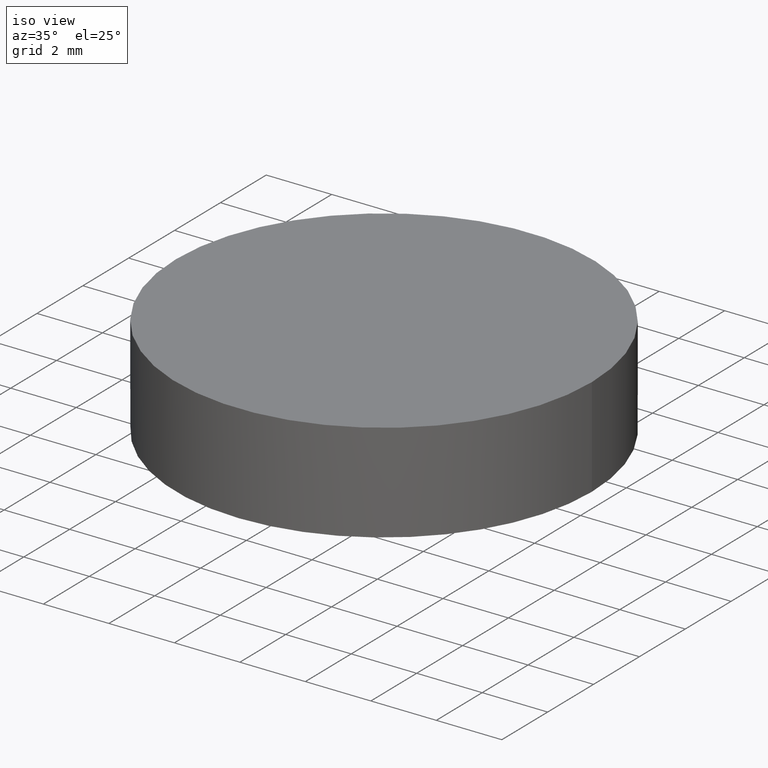
[diagram: clean part render]
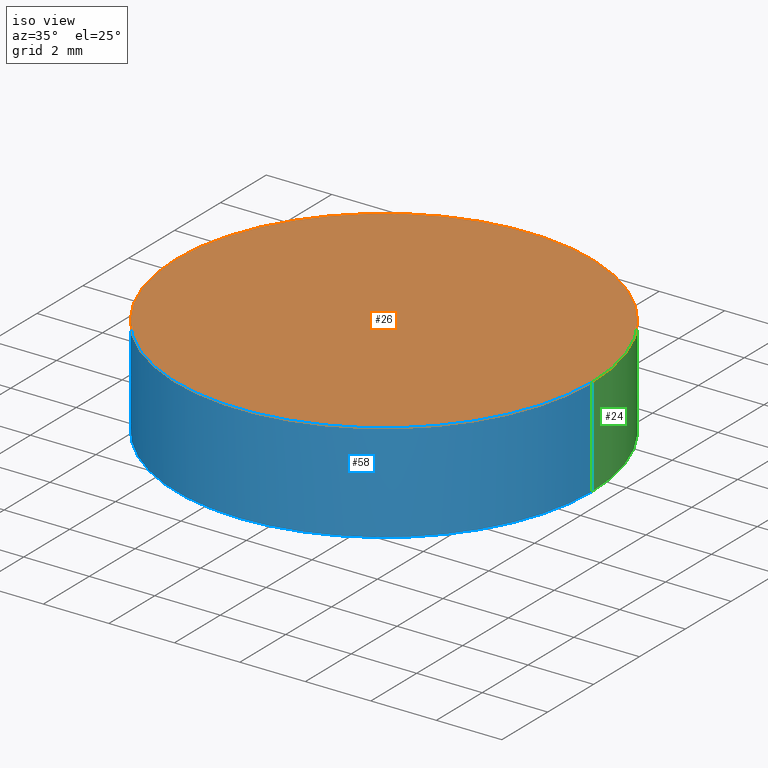
[diagram: same view with three faces highlighted in distinct colors, each labeled with its STEP entity id]
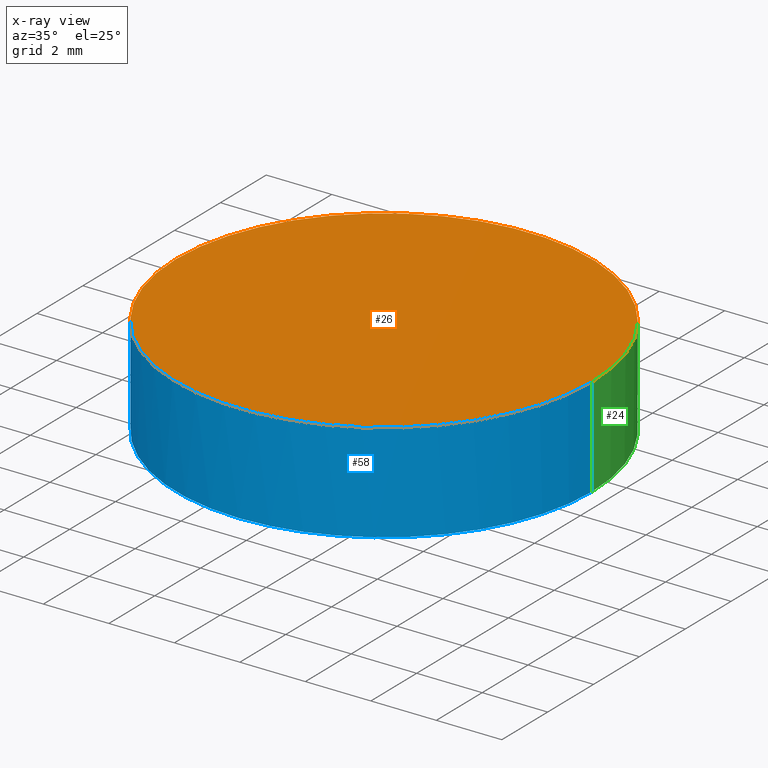
[diagram: x-ray of the same camera — body ghosted, the three highlighted faces saturated]
A machine part, iso view with three faces highlighted in distinct colors.
The next image is the same camera in x-ray (body ghosted, the three faces saturated) — at least one of them is partly hidden behind the body in this view.
Their STEP definitions:

[orange] entity #26 — the highlighted planar face has unit normal (0, 0, 1).
#18 = DIRECTION ( 'NONE',  ( -0.0000000000000000000, -0.0000000000000000000, -1.000000000000000000 ) ) ;
#26 = ADVANCED_FACE ( 'NONE', ( #168 ), #67, .T. ) ;
#29 = AXIS2_PLACEMENT_3D ( 'NONE', #234, #103, #221 ) ;
#32 = VERTEX_POINT ( 'NONE', #119 ) ;
#35 = CARTESIAN_POINT ( 'NONE',  ( 2.498001805406600200E-016, 1.221245327087670000E-015, 3.500000000000000000 ) ) ;
#36 = ORIENTED_EDGE ( 'NONE', *, *, #64, .F. ) ;
#44 = AXIS2_PLACEMENT_3D ( 'NONE', #157, #66, #198 ) ;
#64 = EDGE_CURVE ( 'NONE', #32, #116, #208, .T. ) ;
#66 = DIRECTION ( 'NONE',  ( -0.0000000000000000000, -0.0000000000000000000, -1.000000000000000000 ) ) ;
#67 = PLANE ( 'NONE',  #29 ) ;
#81 = CIRCLE ( 'NONE', #219, 6.349999999999999600 ) ;
#83 = CARTESIAN_POINT ( 'NONE',  ( -6.349999999999999600, 1.998896044546239400E-015, 3.500000000000000000 ) ) ;
#103 = DIRECTION ( 'NONE',  ( 0.0000000000000000000, 0.0000000000000000000, 1.000000000000000000 ) ) ;
#108 = DIRECTION ( 'NONE',  ( 1.000000000000000000, 0.0000000000000000000, 0.0000000000000000000 ) ) ;
#116 = VERTEX_POINT ( 'NONE', #83 ) ;
#119 = CARTESIAN_POINT ( 'NONE',  ( 6.349999999999999600, 1.221245327087670000E-015, 3.500000000000000000 ) ) ;
#152 = ORIENTED_EDGE ( 'NONE', *, *, #179, .F. ) ;
#157 = CARTESIAN_POINT ( 'NONE',  ( 2.498001805406600200E-016, 1.221245327087670000E-015, 3.500000000000000000 ) ) ;
#168 = FACE_OUTER_BOUND ( 'NONE', #225, .T. ) ;
#179 = EDGE_CURVE ( 'NONE', #116, #32, #81, .T. ) ;
#198 = DIRECTION ( 'NONE',  ( 1.000000000000000000, 0.0000000000000000000, 0.0000000000000000000 ) ) ;
#208 = CIRCLE ( 'NONE', #44, 6.349999999999999600 ) ;
#219 = AXIS2_PLACEMENT_3D ( 'NONE', #35, #18, #108 ) ;
#221 = DIRECTION ( 'NONE',  ( 1.000000000000000000, 0.0000000000000000000, -0.0000000000000000000 ) ) ;
#225 = EDGE_LOOP ( 'NONE', ( #36, #152 ) ) ;
#234 = CARTESIAN_POINT ( 'NONE',  ( 0.0000000000000000000, 13.15799999999999900, 3.500000000000000000 ) ) ;

[blue] entity #58 — the highlighted cylindrical surface (partial cylindrical patch) has radius 6.35 mm, axis along (0, 0, 1).
#4 = VECTOR ( 'NONE', #173, 1000.000000000000000 ) ;
#8 = FACE_OUTER_BOUND ( 'NONE', #98, .T. ) ;
#10 = DIRECTION ( 'NONE',  ( -0.0000000000000000000, -0.0000000000000000000, -1.000000000000000000 ) ) ;
#11 = LINE ( 'NONE', #141, #4 ) ;
#12 = CARTESIAN_POINT ( 'NONE',  ( -6.349999999999999600, 1.998896044546239400E-015, 0.4731195107520910200 ) ) ;
#22 = ORIENTED_EDGE ( 'NONE', *, *, #188, .F. ) ;
#25 = EDGE_CURVE ( 'NONE', #28, #116, #158, .T. ) ;
#28 = VERTEX_POINT ( 'NONE', #12 ) ;
#32 = VERTEX_POINT ( 'NONE', #119 ) ;
#33 = ORIENTED_EDGE ( 'NONE', *, *, #25, .F. ) ;
#39 = AXIS2_PLACEMENT_3D ( 'NONE', #226, #172, #57 ) ;
#41 = CYLINDRICAL_SURFACE ( 'NONE', #63, 6.349999999999999600 ) ;
#44 = AXIS2_PLACEMENT_3D ( 'NONE', #157, #66, #198 ) ;
#48 = ORIENTED_EDGE ( 'NONE', *, *, #212, .T. ) ;
#57 = DIRECTION ( 'NONE',  ( 1.000000000000000000, 0.0000000000000000000, 0.0000000000000000000 ) ) ;
#58 = ADVANCED_FACE ( 'NONE', ( #8 ), #41, .T. ) ;
#63 = AXIS2_PLACEMENT_3D ( 'NONE', #232, #86, #136 ) ;
#64 = EDGE_CURVE ( 'NONE', #32, #116, #208, .T. ) ;
#66 = DIRECTION ( 'NONE',  ( -0.0000000000000000000, -0.0000000000000000000, -1.000000000000000000 ) ) ;
#74 = VERTEX_POINT ( 'NONE', #235 ) ;
#79 = CIRCLE ( 'NONE', #215, 6.349999999999999600 ) ;
#80 = CARTESIAN_POINT ( 'NONE',  ( 2.498001805406600200E-016, 1.221245327087670000E-015, 0.4731195107520910200 ) ) ;
#83 = CARTESIAN_POINT ( 'NONE',  ( -6.349999999999999600, 1.998896044546239400E-015, 3.500000000000000000 ) ) ;
#86 = DIRECTION ( 'NONE',  ( 0.0000000000000000000, 0.0000000000000000000, 1.000000000000000000 ) ) ;
#98 = EDGE_LOOP ( 'NONE', ( #33, #22, #130, #48, #180 ) ) ;
#99 = VECTOR ( 'NONE', #197, 1000.000000000000000 ) ;
#102 = CIRCLE ( 'NONE', #39, 6.349999999999999600 ) ;
#107 = CARTESIAN_POINT ( 'NONE',  ( 6.349999999999999600, 1.221245327087670000E-015, 0.4731195107520910200 ) ) ;
#116 = VERTEX_POINT ( 'NONE', #83 ) ;
#119 = CARTESIAN_POINT ( 'NONE',  ( 6.349999999999999600, 1.221245327087670000E-015, 3.500000000000000000 ) ) ;
#121 = CARTESIAN_POINT ( 'NONE',  ( -6.349999999999999600, 1.998896044546239400E-015, 0.4731195107520910200 ) ) ;
#130 = ORIENTED_EDGE ( 'NONE', *, *, #181, .F. ) ;
#136 = DIRECTION ( 'NONE',  ( 1.000000000000000000, 0.0000000000000000000, 0.0000000000000000000 ) ) ;
#141 = CARTESIAN_POINT ( 'NONE',  ( 6.349999999999999600, 1.221245327087670000E-015, 0.4731195107520910200 ) ) ;
#157 = CARTESIAN_POINT ( 'NONE',  ( 2.498001805406600200E-016, 1.221245327087670000E-015, 3.500000000000000000 ) ) ;
#158 = LINE ( 'NONE', #121, #99 ) ;
#172 = DIRECTION ( 'NONE',  ( -0.0000000000000000000, -0.0000000000000000000, -1.000000000000000000 ) ) ;
#173 = DIRECTION ( 'NONE',  ( 0.0000000000000000000, 0.0000000000000000000, 1.000000000000000000 ) ) ;
#180 = ORIENTED_EDGE ( 'NONE', *, *, #64, .T. ) ;
#181 = EDGE_CURVE ( 'NONE', #214, #74, #102, .T. ) ;
#188 = EDGE_CURVE ( 'NONE', #74, #28, #79, .T. ) ;
#197 = DIRECTION ( 'NONE',  ( 0.0000000000000000000, 0.0000000000000000000, 1.000000000000000000 ) ) ;
#198 = DIRECTION ( 'NONE',  ( 1.000000000000000000, 0.0000000000000000000, 0.0000000000000000000 ) ) ;
#208 = CIRCLE ( 'NONE', #44, 6.349999999999999600 ) ;
#209 = DIRECTION ( 'NONE',  ( 1.000000000000000000, 0.0000000000000000000, 0.0000000000000000000 ) ) ;
#212 = EDGE_CURVE ( 'NONE', #214, #32, #11, .T. ) ;
#214 = VERTEX_POINT ( 'NONE', #107 ) ;
#215 = AXIS2_PLACEMENT_3D ( 'NONE', #80, #10, #209 ) ;
#226 = CARTESIAN_POINT ( 'NONE',  ( 2.498001805406600200E-016, 1.221245327087670000E-015, 0.4731195107520910200 ) ) ;
#232 = CARTESIAN_POINT ( 'NONE',  ( 2.498001805406600200E-016, 1.221245327087670000E-015, 0.4731195107520910200 ) ) ;
#235 = CARTESIAN_POINT ( 'NONE',  ( -1.065814103640150000E-014, -6.350000000000010300, 0.4731195107520927400 ) ) ;

[green] entity #24 — the highlighted cylindrical surface (partial cylindrical patch) has radius 6.35 mm, axis along (0, 0, 1).
#4 = VECTOR ( 'NONE', #173, 1000.000000000000000 ) ;
#11 = LINE ( 'NONE', #141, #4 ) ;
#12 = CARTESIAN_POINT ( 'NONE',  ( -6.349999999999999600, 1.998896044546239400E-015, 0.4731195107520910200 ) ) ;
#14 = AXIS2_PLACEMENT_3D ( 'NONE', #51, #109, #165 ) ;
#18 = DIRECTION ( 'NONE',  ( -0.0000000000000000000, -0.0000000000000000000, -1.000000000000000000 ) ) ;
#24 = ADVANCED_FACE ( 'NONE', ( #218 ), #183, .T. ) ;
#25 = EDGE_CURVE ( 'NONE', #28, #116, #158, .T. ) ;
#28 = VERTEX_POINT ( 'NONE', #12 ) ;
#31 = AXIS2_PLACEMENT_3D ( 'NONE', #120, #196, #220 ) ;
#32 = VERTEX_POINT ( 'NONE', #119 ) ;
#35 = CARTESIAN_POINT ( 'NONE',  ( 2.498001805406600200E-016, 1.221245327087670000E-015, 3.500000000000000000 ) ) ;
#42 = DIRECTION ( 'NONE',  ( -0.0000000000000000000, -0.0000000000000000000, -1.000000000000000000 ) ) ;
#46 = CIRCLE ( 'NONE', #88, 6.349999999999999600 ) ;
#51 = CARTESIAN_POINT ( 'NONE',  ( 2.498001805406600200E-016, 1.221245327087670000E-015, 0.4731195107520910200 ) ) ;
#76 = EDGE_CURVE ( 'NONE', #143, #214, #192, .T. ) ;
#81 = CIRCLE ( 'NONE', #219, 6.349999999999999600 ) ;
#83 = CARTESIAN_POINT ( 'NONE',  ( -6.349999999999999600, 1.998896044546239400E-015, 3.500000000000000000 ) ) ;
#84 = ORIENTED_EDGE ( 'NONE', *, *, #25, .T. ) ;
#88 = AXIS2_PLACEMENT_3D ( 'NONE', #113, #42, #207 ) ;
#99 = VECTOR ( 'NONE', #197, 1000.000000000000000 ) ;
#106 = EDGE_LOOP ( 'NONE', ( #176, #84, #187, #133, #229 ) ) ;
#107 = CARTESIAN_POINT ( 'NONE',  ( 6.349999999999999600, 1.221245327087670000E-015, 0.4731195107520910200 ) ) ;
#108 = DIRECTION ( 'NONE',  ( 1.000000000000000000, 0.0000000000000000000, 0.0000000000000000000 ) ) ;
#109 = DIRECTION ( 'NONE',  ( -0.0000000000000000000, -0.0000000000000000000, -1.000000000000000000 ) ) ;
#113 = CARTESIAN_POINT ( 'NONE',  ( 2.498001805406600200E-016, 1.221245327087670000E-015, 0.4731195107520910200 ) ) ;
#116 = VERTEX_POINT ( 'NONE', #83 ) ;
#119 = CARTESIAN_POINT ( 'NONE',  ( 6.349999999999999600, 1.221245327087670000E-015, 3.500000000000000000 ) ) ;
#120 = CARTESIAN_POINT ( 'NONE',  ( 2.498001805406600200E-016, 1.221245327087670000E-015, 0.4731195107520910200 ) ) ;
#121 = CARTESIAN_POINT ( 'NONE',  ( -6.349999999999999600, 1.998896044546239400E-015, 0.4731195107520910200 ) ) ;
#133 = ORIENTED_EDGE ( 'NONE', *, *, #212, .F. ) ;
#141 = CARTESIAN_POINT ( 'NONE',  ( 6.349999999999999600, 1.221245327087670000E-015, 0.4731195107520910200 ) ) ;
#143 = VERTEX_POINT ( 'NONE', #166 ) ;
#158 = LINE ( 'NONE', #121, #99 ) ;
#165 = DIRECTION ( 'NONE',  ( 1.000000000000000000, 0.0000000000000000000, 0.0000000000000000000 ) ) ;
#166 = CARTESIAN_POINT ( 'NONE',  ( -1.065814103640150000E-014, 6.350000000000000500, 0.4731195107520927400 ) ) ;
#173 = DIRECTION ( 'NONE',  ( 0.0000000000000000000, 0.0000000000000000000, 1.000000000000000000 ) ) ;
#176 = ORIENTED_EDGE ( 'NONE', *, *, #194, .F. ) ;
#179 = EDGE_CURVE ( 'NONE', #116, #32, #81, .T. ) ;
#183 = CYLINDRICAL_SURFACE ( 'NONE', #31, 6.349999999999999600 ) ;
#187 = ORIENTED_EDGE ( 'NONE', *, *, #179, .T. ) ;
#192 = CIRCLE ( 'NONE', #14, 6.349999999999999600 ) ;
#194 = EDGE_CURVE ( 'NONE', #28, #143, #46, .T. ) ;
#196 = DIRECTION ( 'NONE',  ( 0.0000000000000000000, 0.0000000000000000000, 1.000000000000000000 ) ) ;
#197 = DIRECTION ( 'NONE',  ( 0.0000000000000000000, 0.0000000000000000000, 1.000000000000000000 ) ) ;
#207 = DIRECTION ( 'NONE',  ( 1.000000000000000000, 0.0000000000000000000, 0.0000000000000000000 ) ) ;
#212 = EDGE_CURVE ( 'NONE', #214, #32, #11, .T. ) ;
#214 = VERTEX_POINT ( 'NONE', #107 ) ;
#218 = FACE_OUTER_BOUND ( 'NONE', #106, .T. ) ;
#219 = AXIS2_PLACEMENT_3D ( 'NONE', #35, #18, #108 ) ;
#220 = DIRECTION ( 'NONE',  ( 1.000000000000000000, 0.0000000000000000000, 0.0000000000000000000 ) ) ;
#229 = ORIENTED_EDGE ( 'NONE', *, *, #76, .F. ) ;